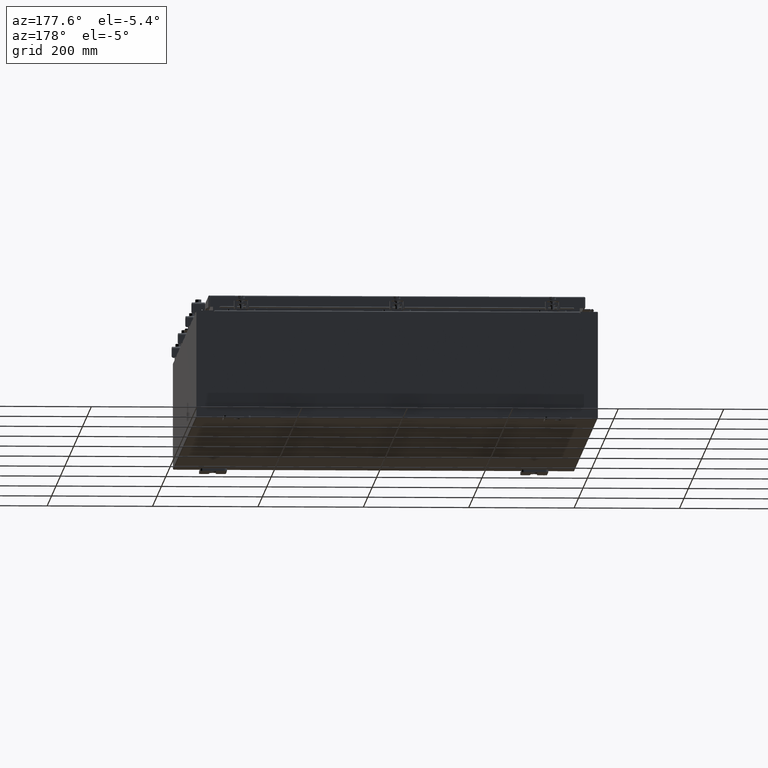
[diagram: clean part render]
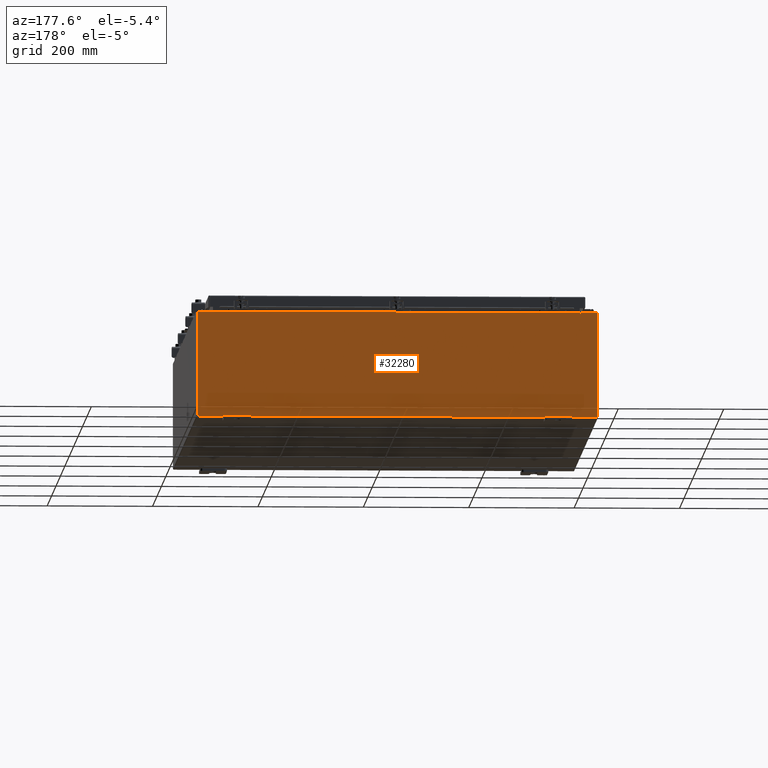
[diagram: same view with one face highlighted and labeled with its STEP entity id]
A machine part, auxiliary view. The second image highlights one B-rep face of the part: STEP entity #32280.
In plain terms, the highlighted planar face has unit normal (0, -1, 0).
Its self-contained STEP definition (entity closure, byte-faithful):
#772 = CARTESIAN_POINT ( 'NONE',  ( 13.63720000000000400, 0.0000000000000000000, 0.0000000000000000000 ) ) ;
#802 = CARTESIAN_POINT ( 'NONE',  ( -14.92529999999999800, 0.0000000000000000000, 3.925299999999999600 ) ) ;
#860 = DIRECTION ( 'NONE',  ( 0.0000000000000000000, 0.0000000000000000000, -1.000000000000000000 ) ) ;
#1458 = CARTESIAN_POINT ( 'NONE',  ( 14.92530000000000200, 0.0000000000000000000, 3.925299999999999600 ) ) ;
#1497 = CARTESIAN_POINT ( 'NONE',  ( 13.63720000000000400, 0.0000000000000000000, 3.912299999999999700 ) ) ;
#2292 = EDGE_CURVE ( 'NONE', #11092, #19192, #2864, .T. ) ;
#2365 = CIRCLE ( 'NONE', #23573, 0.01867499999999949400 ) ;
#2590 = DIRECTION ( 'NONE',  ( 0.0000000000000000000, 0.0000000000000000000, -1.000000000000000000 ) ) ;
#2864 = LINE ( 'NONE', #44205, #37224 ) ;
#3085 = DIRECTION ( 'NONE',  ( 0.0000000000000000000, -0.0000000000000000000, -1.000000000000000000 ) ) ;
#3272 = LINE ( 'NONE', #12878, #21896 ) ;
#4244 = CARTESIAN_POINT ( 'NONE',  ( 13.63720000000000400, 0.0000000000000000000, 3.874949999999999700 ) ) ;
#4324 = VERTEX_POINT ( 'NONE', #21689 ) ;
#4836 = ORIENTED_EDGE ( 'NONE', *, *, #11150, .T. ) ;
#5012 = VERTEX_POINT ( 'NONE', #4244 ) ;
#5151 = VECTOR ( 'NONE', #17773, 39.37007874015748100 ) ;
#5366 = DIRECTION ( 'NONE',  ( 0.0000000000000000000, 0.0000000000000000000, 1.000000000000000000 ) ) ;
#6276 = VERTEX_POINT ( 'NONE', #29668 ) ;
#6460 = CIRCLE ( 'NONE', #30224, 0.01867499999999949400 ) ;
#7090 = ORIENTED_EDGE ( 'NONE', *, *, #35161, .T. ) ;
#7839 = DIRECTION ( 'NONE',  ( -0.0000000000000000000, 1.000000000000000000, -0.0000000000000000000 ) ) ;
#7895 = ORIENTED_EDGE ( 'NONE', *, *, #36233, .T. ) ;
#8064 = ORIENTED_EDGE ( 'NONE', *, *, #36437, .T. ) ;
#8291 = EDGE_CURVE ( 'NONE', #22049, #6276, #14867, .T. ) ;
#11092 = VERTEX_POINT ( 'NONE', #43733 ) ;
#11150 = EDGE_CURVE ( 'NONE', #40450, #44277, #23301, .T. ) ;
#11286 = VERTEX_POINT ( 'NONE', #20239 ) ;
#12878 = CARTESIAN_POINT ( 'NONE',  ( -13.67454999999999500, -0.0000000000000000000, 0.0000000000000000000 ) ) ;
#13344 = VECTOR ( 'NONE', #16001, 39.37007874015748100 ) ;
#13664 = ORIENTED_EDGE ( 'NONE', *, *, #28047, .F. ) ;
#13826 = CARTESIAN_POINT ( 'NONE',  ( -13.63719999999999600, -0.0000000000000000000, 0.0000000000000000000 ) ) ;
#14838 = FACE_OUTER_BOUND ( 'NONE', #38810, .T. ) ;
#14867 = LINE ( 'NONE', #802, #33499 ) ;
#16001 = DIRECTION ( 'NONE',  ( 1.000000000000000000, 0.0000000000000000000, 0.0000000000000000000 ) ) ;
#16321 = ORIENTED_EDGE ( 'NONE', *, *, #2292, .F. ) ;
#17387 = LINE ( 'NONE', #40064, #5151 ) ;
#17410 = VECTOR ( 'NONE', #19126, 39.37007874015748100 ) ;
#17773 = DIRECTION ( 'NONE',  ( 1.000000000000000000, 0.0000000000000000000, 0.0000000000000000000 ) ) ;
#18535 = LINE ( 'NONE', #772, #26039 ) ;
#18798 = ORIENTED_EDGE ( 'NONE', *, *, #36930, .F. ) ;
#18988 = ORIENTED_EDGE ( 'NONE', *, *, #20640, .T. ) ;
#19126 = DIRECTION ( 'NONE',  ( -1.000000000000000000, -0.0000000000000000000, -0.0000000000000000000 ) ) ;
#19192 = VERTEX_POINT ( 'NONE', #24353 ) ;
#20209 = DIRECTION ( 'NONE',  ( 1.000000000000000000, 0.0000000000000000000, 0.0000000000000000000 ) ) ;
#20239 = CARTESIAN_POINT ( 'NONE',  ( -13.67454999999999500, 0.0000000000000000000, 3.925299999999999600 ) ) ;
#20316 = CARTESIAN_POINT ( 'NONE',  ( -13.65587499999999600, 0.0000000000000000000, 3.874949999999999700 ) ) ;
#20640 = EDGE_CURVE ( 'NONE', #44277, #22049, #47067, .T. ) ;
#21603 = VERTEX_POINT ( 'NONE', #32550 ) ;
#21627 = PLANE ( 'NONE',  #36215 ) ;
#21689 = CARTESIAN_POINT ( 'NONE',  ( -13.63719999999999600, 1.024442997624098700E-016, 3.912299999999999700 ) ) ;
#21896 = VECTOR ( 'NONE', #5366, 39.37007874015748100 ) ;
#22049 = VERTEX_POINT ( 'NONE', #35610 ) ;
#22369 = EDGE_CURVE ( 'NONE', #25295, #11286, #3272, .T. ) ;
#22764 = ORIENTED_EDGE ( 'NONE', *, *, #45813, .F. ) ;
#23097 = DIRECTION ( 'NONE',  ( -0.0000000000000000000, -0.0000000000000000000, 1.000000000000000000 ) ) ;
#23144 = CARTESIAN_POINT ( 'NONE',  ( 14.92530000000000200, 0.0000000000000000000, 3.925299999999999600 ) ) ;
#23301 = LINE ( 'NONE', #23144, #33217 ) ;
#23573 = AXIS2_PLACEMENT_3D ( 'NONE', #20316, #46305, #24022 ) ;
#24022 = DIRECTION ( 'NONE',  ( 0.0000000000000000000, 0.0000000000000000000, -1.000000000000000000 ) ) ;
#24353 = CARTESIAN_POINT ( 'NONE',  ( 13.67455000000000200, 0.0000000000000000000, 3.874949999999999700 ) ) ;
#25244 = ORIENTED_EDGE ( 'NONE', *, *, #8291, .T. ) ;
#25295 = VERTEX_POINT ( 'NONE', #47557 ) ;
#25334 = DIRECTION ( 'NONE',  ( 0.0000000000000000000, -1.000000000000000000, 0.0000000000000000000 ) ) ;
#26039 = VECTOR ( 'NONE', #30562, 39.37007874015748100 ) ;
#26766 = VECTOR ( 'NONE', #20209, 39.37007874015748100 ) ;
#27460 = ORIENTED_EDGE ( 'NONE', *, *, #34948, .F. ) ;
#27651 = ORIENTED_EDGE ( 'NONE', *, *, #22369, .F. ) ;
#28047 = EDGE_CURVE ( 'NONE', #21603, #25295, #2365, .T. ) ;
#29668 = CARTESIAN_POINT ( 'NONE',  ( -14.92529999999999800, 0.0000000000000000000, 3.925299999999999600 ) ) ;
#30124 = CARTESIAN_POINT ( 'NONE',  ( 13.65587500000000200, 0.0000000000000000000, 3.874949999999999700 ) ) ;
#30224 = AXIS2_PLACEMENT_3D ( 'NONE', #30124, #7839, #33875 ) ;
#30562 = DIRECTION ( 'NONE',  ( 0.0000000000000000000, 0.0000000000000000000, 1.000000000000000000 ) ) ;
#30804 = CARTESIAN_POINT ( 'NONE',  ( -14.92529999999999800, 0.0000000000000000000, 3.925299999999999600 ) ) ;
#31290 = LINE ( 'NONE', #13826, #42367 ) ;
#32280 = ADVANCED_FACE ( 'NONE', ( #14838 ), #21627, .F. ) ;
#32550 = CARTESIAN_POINT ( 'NONE',  ( -13.63719999999999600, -0.0000000000000000000, 3.874949999999999700 ) ) ;
#33116 = LINE ( 'NONE', #30804, #13344 ) ;
#33217 = VECTOR ( 'NONE', #860, 39.37007874015748100 ) ;
#33499 = VECTOR ( 'NONE', #23097, 39.37007874015748100 ) ;
#33875 = DIRECTION ( 'NONE',  ( 0.0000000000000000000, 0.0000000000000000000, -1.000000000000000000 ) ) ;
#34948 = EDGE_CURVE ( 'NONE', #19192, #5012, #6460, .T. ) ;
#35020 = CARTESIAN_POINT ( 'NONE',  ( -13.63719999999999800, 1.024442997624098700E-016, 3.912299999999999700 ) ) ;
#35161 = EDGE_CURVE ( 'NONE', #4324, #47136, #36710, .T. ) ;
#35610 = CARTESIAN_POINT ( 'NONE',  ( -14.92529999999999800, 0.0000000000000000000, -3.925299999999999600 ) ) ;
#35765 = CARTESIAN_POINT ( 'NONE',  ( 14.92530000000000200, 0.0000000000000000000, -3.925299999999999600 ) ) ;
#36215 = AXIS2_PLACEMENT_3D ( 'NONE', #47619, #25334, #3085 ) ;
#36233 = EDGE_CURVE ( 'NONE', #11092, #40450, #33116, .T. ) ;
#36437 = EDGE_CURVE ( 'NONE', #6276, #11286, #17387, .T. ) ;
#36710 = LINE ( 'NONE', #35020, #26766 ) ;
#36930 = EDGE_CURVE ( 'NONE', #4324, #21603, #31290, .T. ) ;
#37224 = VECTOR ( 'NONE', #47755, 39.37007874015748100 ) ;
#38810 = EDGE_LOOP ( 'NONE', ( #27651, #13664, #18798, #7090, #22764, #27460, #16321, #7895, #4836, #18988, #25244, #8064 ) ) ;
#40064 = CARTESIAN_POINT ( 'NONE',  ( -14.92529999999999800, 0.0000000000000000000, 3.925299999999999600 ) ) ;
#40450 = VERTEX_POINT ( 'NONE', #1458 ) ;
#41429 = CARTESIAN_POINT ( 'NONE',  ( -14.92529999999999800, 0.0000000000000000000, -3.925299999999999600 ) ) ;
#42367 = VECTOR ( 'NONE', #2590, 39.37007874015748100 ) ;
#43733 = CARTESIAN_POINT ( 'NONE',  ( 13.67455000000000400, 0.0000000000000000000, 3.925299999999999600 ) ) ;
#44205 = CARTESIAN_POINT ( 'NONE',  ( 13.67454999999983300, -0.0000000000000000000, -5.935537951421816200E-013 ) ) ;
#44277 = VERTEX_POINT ( 'NONE', #35765 ) ;
#45813 = EDGE_CURVE ( 'NONE', #5012, #47136, #18535, .T. ) ;
#46305 = DIRECTION ( 'NONE',  ( -0.0000000000000000000, 1.000000000000000000, -0.0000000000000000000 ) ) ;
#47067 = LINE ( 'NONE', #41429, #17410 ) ;
#47136 = VERTEX_POINT ( 'NONE', #1497 ) ;
#47557 = CARTESIAN_POINT ( 'NONE',  ( -13.67454999999999500, 0.0000000000000000000, 3.874949999999999700 ) ) ;
#47619 = CARTESIAN_POINT ( 'NONE',  ( 0.0000000000000000000, 0.0000000000000000000, 0.0000000000000000000 ) ) ;
#47755 = DIRECTION ( 'NONE',  ( -4.340572780400004900E-014, 0.0000000000000000000, -1.000000000000000000 ) ) ;